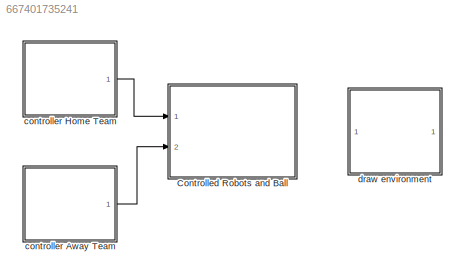
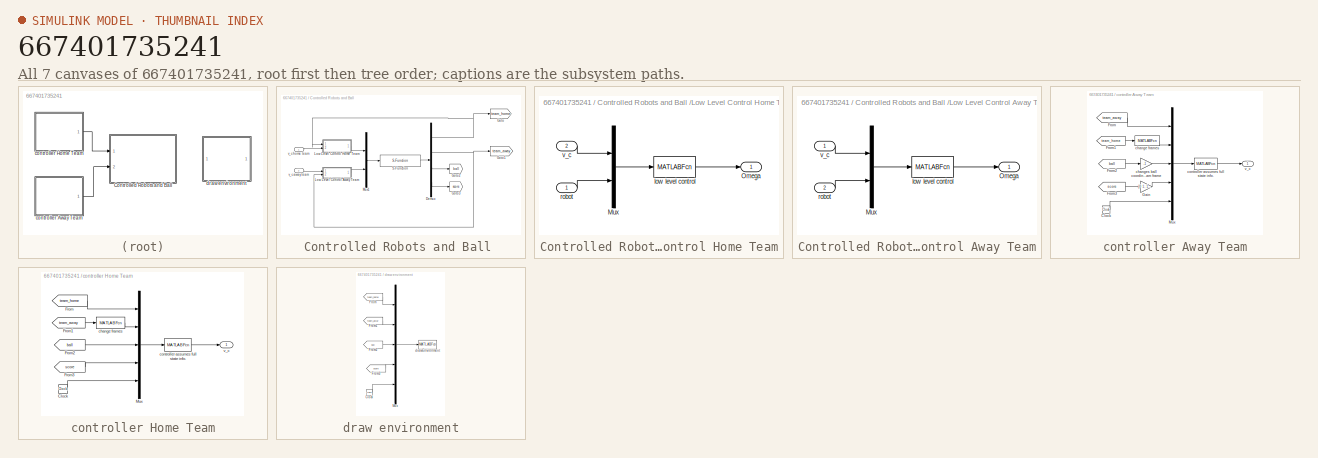
[diagram: thumbnail index - all 7 canvases of the model, root first then tree order]
MODEL slx_667401735241
KIND model
CONFIG AbsTol = auto
CONFIG FixedStep = auto
CONFIG InitFcn = param
CONFIG MaxStep = auto
CONFIG MinStep = auto
CONFIG RelTol = 1e-3
CONFIG SampleTimeConstraint = Unconstrained
CONFIG Solver = ode45
CONFIG SolverMode = Auto
CONFIG SolverName = ode45
CONFIG StartTime = 0.0
CONFIG StopTime = 60
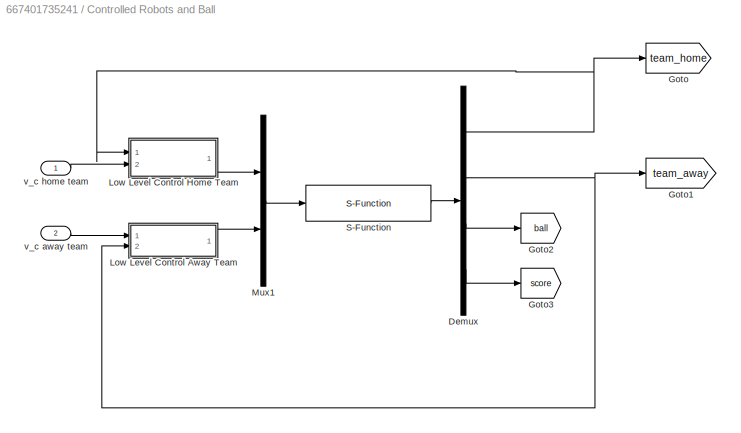
BLOCK [SubSystem] Controlled Robots and Ball 
  Ports = [2]
  RequestExecContextInheritance = off
  Variant = off
BLOCK [Demux] Controlled Robots and Ball /Demux
  DisplayOption = bar
  Outputs = [3*P.num_robots; 3*P.num_robots; 2; 2]
  Ports = [1, 4]
BLOCK [Goto] Controlled Robots and Ball /Goto
  GotoTag = team_home
  TagVisibility = global
BLOCK [Goto] Controlled Robots and Ball /Goto1
  GotoTag = team_away
  TagVisibility = global
BLOCK [Goto] Controlled Robots and Ball /Goto2
  GotoTag = ball
  TagVisibility = global
BLOCK [Goto] Controlled Robots and Ball /Goto3
  GotoTag = score
  TagVisibility = global
BLOCK [SubSystem] Controlled Robots and Ball /Low Level Control Away Team
  Ports = [2, 1]
  RequestExecContextInheritance = off
  Variant = off
BLOCK [Mux] Controlled Robots and Ball /Low Level Control Away Team/Mux
  DisplayOption = bar
  Inputs = 2
  Ports = [2, 1]
BLOCK [Outport] Controlled Robots and Ball /Low Level Control Away Team/Omega
  IconDisplay = Port number
BLOCK [MATLABFcn] Controlled Robots and Ball /Low Level Control Away Team/low level control
  MATLABFcn = lowlevelctrl(u,P)
  OutputDimensions = 3*P.num_robots
  Ports = [1, 1]
  SampleTime = 0.01
BLOCK [Inport] Controlled Robots and Ball /Low Level Control Away Team/robot
  IconDisplay = Port number
  Port = 2
BLOCK [Inport] Controlled Robots and Ball /Low Level Control Away Team/v_c
  IconDisplay = Port number
BLOCK [SubSystem] Controlled Robots and Ball /Low Level Control Home Team
  Ports = [2, 1]
  RequestExecContextInheritance = off
  Variant = off
BLOCK [Mux] Controlled Robots and Ball /Low Level Control Home Team/Mux
  DisplayOption = bar
  Inputs = 2
  Ports = [2, 1]
BLOCK [Outport] Controlled Robots and Ball /Low Level Control Home Team/Omega
  IconDisplay = Port number
BLOCK [MATLABFcn] Controlled Robots and Ball /Low Level Control Home Team/low level control
  MATLABFcn = lowlevelctrl(u,P)
  OutputDimensions = 3*P.num_robots
  Ports = [1, 1]
  SampleTime = 0.01
BLOCK [Inport] Controlled Robots and Ball /Low Level Control Home Team/robot
  IconDisplay = Port number
BLOCK [Inport] Controlled Robots and Ball /Low Level Control Home Team/v_c
  IconDisplay = Port number
  Port = 2
BLOCK [Mux] Controlled Robots and Ball /Mux1
  DisplayOption = bar
  Inputs = 2
  Ports = [2, 1]
BLOCK [S-Function] Controlled Robots and Ball /S-Function
  EnableBusSupport = off
  FunctionName = soccer_dynamics
  Parameters = P
  Ports = [1, 1]
  SFunctionDeploymentMode = off
BLOCK [Inport] Controlled Robots and Ball /v_c away team
  IconDisplay = Port number
  Port = 2
BLOCK [Inport] Controlled Robots and Ball /v_c home team
  IconDisplay = Port number
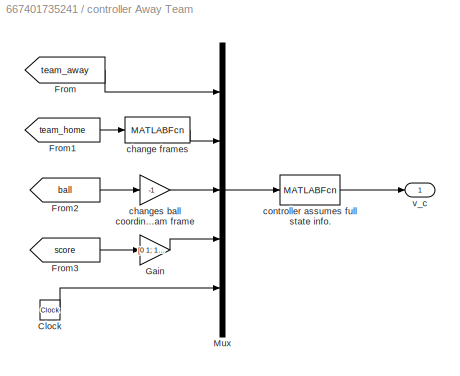
BLOCK [SubSystem] controller Away Team
  Ports = [0, 1]
  RequestExecContextInheritance = off
  Variant = off
BLOCK [Clock] controller Away Team/Clock
BLOCK [From] controller Away Team/From
  GotoTag = team_away
  TagVisibility = global
BLOCK [From] controller Away Team/From1
  GotoTag = team_home
  TagVisibility = global
BLOCK [From] controller Away Team/From2
  GotoTag = ball
  TagVisibility = global
BLOCK [From] controller Away Team/From3
  GotoTag = score
  TagVisibility = global
BLOCK [Gain] controller Away Team/Gain
  Gain = [0 1; 1 0]
  Multiplication = Matrix(K*u)
  OutDataTypeStr = Inherit: Inherit via internal rule
  ParamDataTypeStr = Inherit: Inherit via internal rule
  SaturateOnIntegerOverflow = off
BLOCK [Mux] controller Away Team/Mux
  DisplayOption = bar
  Inputs = 5
  Ports = [5, 1]
BLOCK [MATLABFcn] controller Away Team/change frames 
  MATLABFcn = robot_change_frames(u,P)
  OutputDimensions = 3*P.num_robots
  Ports = [1, 1]
  SampleTime = P.control_sample_rate
BLOCK [Gain] controller Away Team/changes ball coordinates to away team frame
  Gain = -1
  OutDataTypeStr = Inherit: Inherit via internal rule
  ParamDataTypeStr = Inherit: Inherit via internal rule
  SaturateOnIntegerOverflow = off
BLOCK [MATLABFcn] controller Away Team/controller assumes full state info.
  MATLABFcn = controller_away(u,P)
  OutputDimensions = 3*P.num_robots
  Ports = [1, 1]
  SampleTime = P.control_sample_rate
BLOCK [Outport] controller Away Team/v_c
  IconDisplay = Port number
BLOCK [SubSystem] controller Home Team
  Ports = [0, 1]
  RequestExecContextInheritance = off
  Variant = off
BLOCK [Clock] controller Home Team/Clock
BLOCK [From] controller Home Team/From
  GotoTag = team_home
  TagVisibility = global
BLOCK [From] controller Home Team/From1
  GotoTag = team_away
  TagVisibility = global
BLOCK [From] controller Home Team/From2
  GotoTag = ball
  TagVisibility = global
BLOCK [From] controller Home Team/From3
  GotoTag = score
  TagVisibility = global
BLOCK [Mux] controller Home Team/Mux
  DisplayOption = bar
  Inputs = 5
  Ports = [5, 1]
BLOCK [MATLABFcn] controller Home Team/change frames 
  MATLABFcn = robot_change_frames(u,P)
  OutputDimensions = 3*P.num_robots
  Ports = [1, 1]
  SampleTime = P.control_sample_rate
BLOCK [MATLABFcn] controller Home Team/controller assumes full state info.
  MATLABFcn = controller_home(u,P)
  OutputDimensions = 3*P.num_robots
  Ports = [1, 1]
  SampleTime = P.control_sample_rate
BLOCK [Outport] controller Home Team/v_c
  IconDisplay = Port number
BLOCK [SubSystem] draw environment
  Ports = []
  RequestExecContextInheritance = off
  Variant = off
BLOCK [Clock] draw environment/Clock
BLOCK [From] draw environment/From
  GotoTag = team_home
  TagVisibility = global
BLOCK [From] draw environment/From1
  GotoTag = team_away
  TagVisibility = global
BLOCK [From] draw environment/From2
  GotoTag = ball
  TagVisibility = global
BLOCK [From] draw environment/From3
  GotoTag = score
  TagVisibility = global
BLOCK [Mux] draw environment/Mux
  DisplayOption = bar
  Inputs = 5
  Ports = [5, 1]
BLOCK [MATLABFcn] draw environment/drawEnvironment
  MATLABFcn = drawEnvironment(u,P)
  OutputDimensions = 0
  Ports = [1]
  SampleTime = P.display_rate
NET Controlled Robots and Ball /Demux:1 -> Controlled Robots and Ball /Goto:1, Controlled Robots and Ball /Low Level Control Home Team:1
NET Controlled Robots and Ball /Demux:2 -> Controlled Robots and Ball /Goto1:1, Controlled Robots and Ball /Low Level Control Away Team:2
LINE Controlled Robots and Ball /Demux:3 -> Controlled Robots and Ball /Goto2:1
LINE Controlled Robots and Ball /Demux:4 -> Controlled Robots and Ball /Goto3:1
LINE Controlled Robots and Ball /Low Level Control Away Team/Mux:1 -> Controlled Robots and Ball /Low Level Control Away Team/low level control:1
LINE Controlled Robots and Ball /Low Level Control Away Team/low level control:1 -> Controlled Robots and Ball /Low Level Control Away Team/Omega:1
LINE Controlled Robots and Ball /Low Level Control Away Team/robot:1 -> Controlled Robots and Ball /Low Level Control Away Team/Mux:2
LINE Controlled Robots and Ball /Low Level Control Away Team/v_c:1 -> Controlled Robots and Ball /Low Level Control Away Team/Mux:1
LINE Controlled Robots and Ball /Low Level Control Away Team:1 -> Controlled Robots and Ball /Mux1:2
LINE Controlled Robots and Ball /Low Level Control Home Team/Mux:1 -> Controlled Robots and Ball /Low Level Control Home Team/low level control:1
LINE Controlled Robots and Ball /Low Level Control Home Team/low level control:1 -> Controlled Robots and Ball /Low Level Control Home Team/Omega:1
LINE Controlled Robots and Ball /Low Level Control Home Team/robot:1 -> Controlled Robots and Ball /Low Level Control Home Team/Mux:2
LINE Controlled Robots and Ball /Low Level Control Home Team/v_c:1 -> Controlled Robots and Ball /Low Level Control Home Team/Mux:1
LINE Controlled Robots and Ball /Low Level Control Home Team:1 -> Controlled Robots and Ball /Mux1:1
LINE Controlled Robots and Ball /Mux1:1 -> Controlled Robots and Ball /S-Function:1
LINE Controlled Robots and Ball /S-Function:1 -> Controlled Robots and Ball /Demux:1
LINE Controlled Robots and Ball /v_c away team:1 -> Controlled Robots and Ball /Low Level Control Away Team:1
LINE Controlled Robots and Ball /v_c home team:1 -> Controlled Robots and Ball /Low Level Control Home Team:2
LINE controller Away Team/Clock:1 -> controller Away Team/Mux:5
LINE controller Away Team/From1:1 -> controller Away Team/change frames :1
LINE controller Away Team/From2:1 -> controller Away Team/changes ball coordinates to away team frame:1
LINE controller Away Team/From3:1 -> controller Away Team/Gain:1
LINE controller Away Team/From:1 -> controller Away Team/Mux:1
LINE controller Away Team/Gain:1 -> controller Away Team/Mux:4
LINE controller Away Team/Mux:1 -> controller Away Team/controller assumes full state info.:1
LINE controller Away Team/change frames :1 -> controller Away Team/Mux:2
LINE controller Away Team/changes ball coordinates to away team frame:1 -> controller Away Team/Mux:3
LINE controller Away Team/controller assumes full state info.:1 -> controller Away Team/v_c:1
LINE controller Away Team:1 -> Controlled Robots and Ball :2
LINE controller Home Team/Clock:1 -> controller Home Team/Mux:5
LINE controller Home Team/From1:1 -> controller Home Team/change frames :1
LINE controller Home Team/From2:1 -> controller Home Team/Mux:3
LINE controller Home Team/From3:1 -> controller Home Team/Mux:4
LINE controller Home Team/From:1 -> controller Home Team/Mux:1
LINE controller Home Team/Mux:1 -> controller Home Team/controller assumes full state info.:1
LINE controller Home Team/change frames :1 -> controller Home Team/Mux:2
LINE controller Home Team/controller assumes full state info.:1 -> controller Home Team/v_c:1
LINE controller Home Team:1 -> Controlled Robots and Ball :1
LINE draw environment/Clock:1 -> draw environment/Mux:5
LINE draw environment/From1:1 -> draw environment/Mux:2
LINE draw environment/From2:1 -> draw environment/Mux:3
LINE draw environment/From3:1 -> draw environment/Mux:4
LINE draw environment/From:1 -> draw environment/Mux:1
LINE draw environment/Mux:1 -> draw environment/drawEnvironment:1
note: NET lines group one-source signal fan-out (src -> all destinations, sorted); 1:1 wires keep LINE
